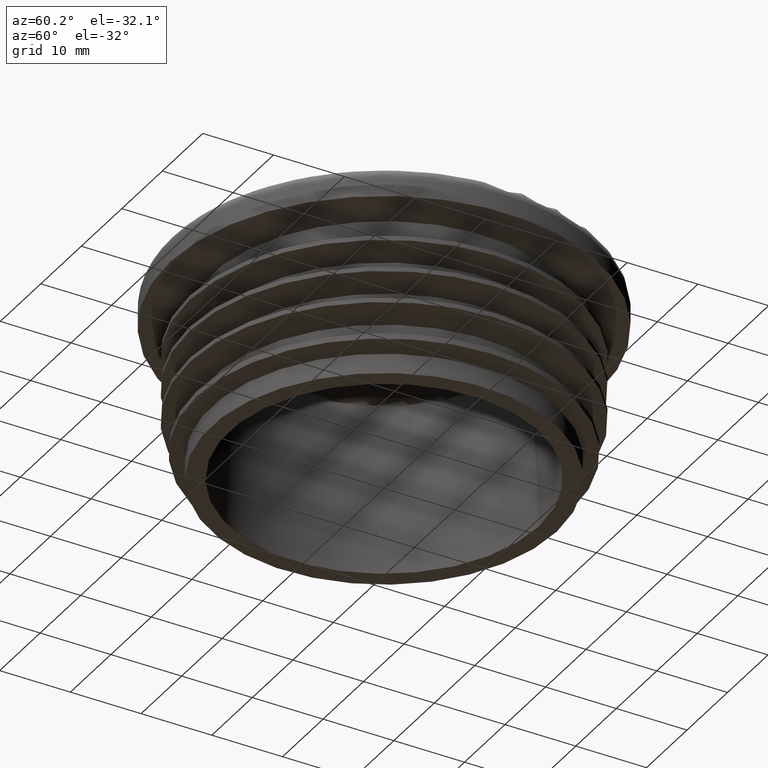
[diagram: clean part render]
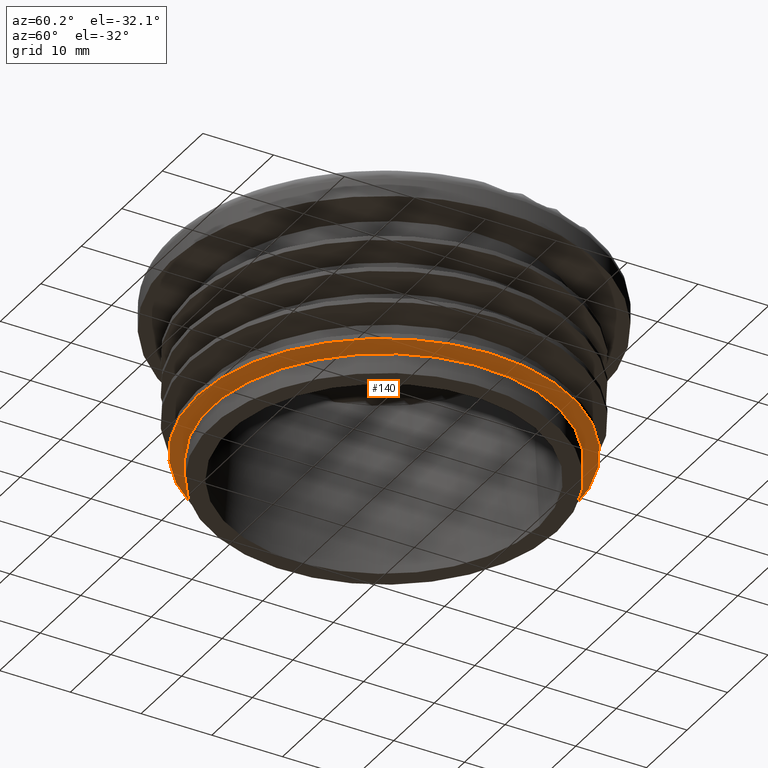
[diagram: same view with one face highlighted and labeled with its STEP entity id]
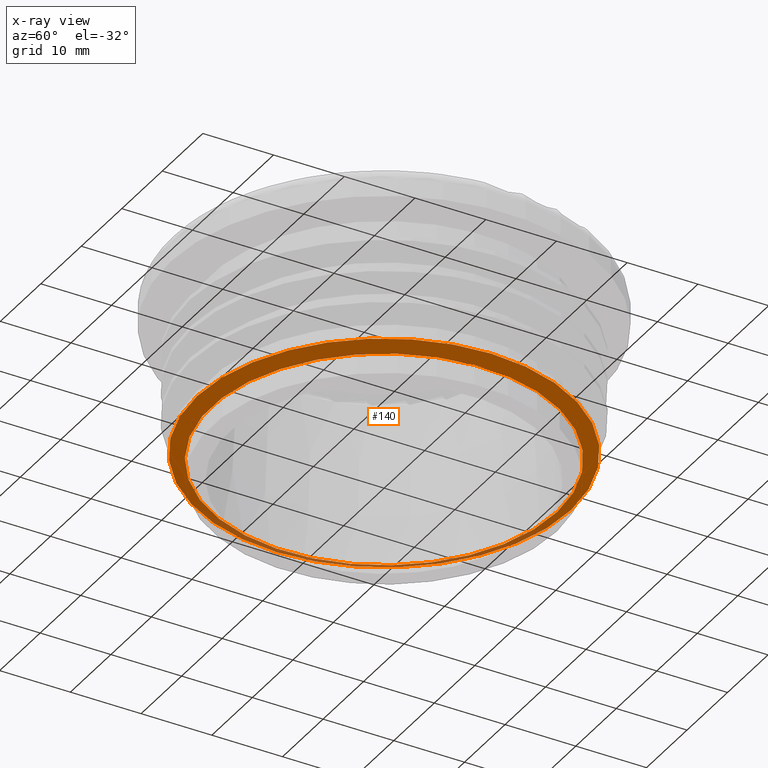
[diagram: x-ray of the same camera — body ghosted, the highlighted face saturated]
A machine part, auxiliary view. The second image highlights one B-rep face of the part: STEP entity #140.
The next image is the same camera in x-ray: the body ghosted, the highlighted face saturated — about 0% of this face is hidden behind the body in this view.
In plain terms, the highlighted conical surface has half-angle 65 deg.
Its self-contained STEP definition (entity closure, byte-faithful):
#140 = ADVANCED_FACE( '', ( #309, #310 ), #311, .T. );
#309 = FACE_BOUND( '', #800, .T. );
#310 = FACE_OUTER_BOUND( '', #801, .T. );
#311 = CONICAL_SURFACE( '', #802, 26.4500000000000, 1.13446401379631 );
#800 = EDGE_LOOP( '', ( #1433 ) );
#801 = EDGE_LOOP( '', ( #1434 ) );
#802 = AXIS2_PLACEMENT_3D( '', #1435, #1436, #1437 );
#1433 = ORIENTED_EDGE( '', *, *, #1668, .F. );
#1434 = ORIENTED_EDGE( '', *, *, #1669, .T. );
#1435 = CARTESIAN_POINT( '', ( 0.000000000000000, -1.11851776756822E-015, 3.73261531630999 ) );
#1436 = DIRECTION( '', ( 0.000000000000000, 6.12303176911189E-017, 1.00000000000000 ) );
#1437 = DIRECTION( '', ( 0.000000000000000, -1.00000000000000, 6.12303176911189E-017 ) );
#1668 = EDGE_CURVE( '', #1930, #1930, #1931, .T. );
#1669 = EDGE_CURVE( '', #1932, #1932, #1933, .T. );
#1930 = VERTEX_POINT( '', #3318 );
#1931 = CIRCLE( '', #3319, 24.4500000000000 );
#1932 = VERTEX_POINT( '', #3320 );
#1933 = CIRCLE( '', #3321, 26.4500000000000 );
#3318 = CARTESIAN_POINT( '', ( 0.000000000000000, 24.4500000000000, 2.79999999999997 ) );
#3319 = AXIS2_PLACEMENT_3D( '', #3416, #3417, #3418 );
#3320 = CARTESIAN_POINT( '', ( 0.000000000000000, 26.4500000000000, 3.73261531630998 ) );
#3321 = AXIS2_PLACEMENT_3D( '', #3419, #3420, #3421 );
#3416 = CARTESIAN_POINT( '', ( 0.000000000000000, -1.17562209966948E-015, 2.79999999999997 ) );
#3417 = DIRECTION( '', ( 0.000000000000000, -6.12303176911189E-017, -1.00000000000000 ) );
#3418 = DIRECTION( '', ( 0.000000000000000, 1.00000000000000, -6.12303176911189E-017 ) );
#3419 = CARTESIAN_POINT( '', ( 0.000000000000000, -1.11851776756822E-015, 3.73261531630999 ) );
#3420 = DIRECTION( '', ( 0.000000000000000, -6.12303176911189E-017, -1.00000000000000 ) );
#3421 = DIRECTION( '', ( 0.000000000000000, 1.00000000000000, -6.12303176911189E-017 ) );